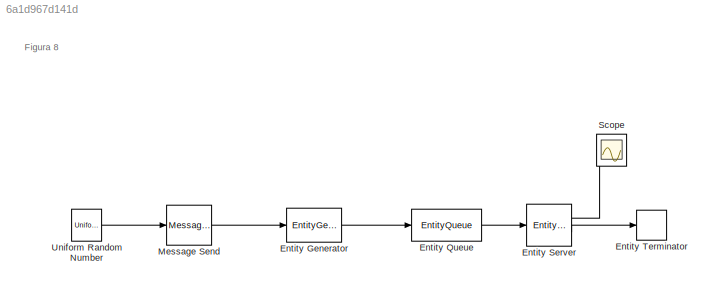
MODEL slx_6a1d967d141d
KIND model
CONFIG AbsTol = auto
CONFIG FixedStep = auto
CONFIG MaxStep = auto
CONFIG MinStep = auto
CONFIG RelTol = 1e-3
CONFIG SampleTimeConstraint = Unconstrained
CONFIG Solver = VariableStepDiscrete
CONFIG SolverMode = Auto
CONFIG SolverName = VariableStepDiscrete
CONFIG StartTime = 0.0
CONFIG StopTime = 2400
BLOCK [EntityGenerator] Entity Generator
  AttributeInitialValue = 1|1
  AttributeName = Attribute|ServiceTime
  EntityType = Structured
  EntityTypeName = Entity
  GenerateAction = persistent init\nif (isempty(init))\n    rng(2347);\n    init = true;\nend\nentity.ServiceTime = 3.5 + rand * 3;
  GenerationMethod = Event-based
  InputPortMap = u0
  InputPortMessageModes = m
  OutputPortMap = o3
  OutputPortMessageModes = m
  Ports = [1, 1]
BLOCK [EntityQueue] Entity Queue
  InputPortMap = u0
  InputPortMessageModes = m
  OutputPortMap = o5
  OutputPortMessageModes = m
  Ports = [1, 1]
BLOCK [EntityServer] Entity Server
  AverageWait = on
  Capacity = 1
  InputPortMap = u2
  InputPortMessageModes = m
  OutputPortMap = o4,o9
  OutputPortMessageModes = n,m
  Ports = [1, 2]
  ServiceTimeSource = Attribute
BLOCK [EntityTerminator] Entity Terminator
  InputPortMap = u0
  InputPortMessageModes = m
  Ports = [1]
BLOCK [MessageSend] Message Send
  InputPortMap = u1
  OutputPortMessageModes = m
  Ports = [1, 1]
BLOCK [Scope] Scope
  Ports = [1]
  ScopeSpecificationString = Simulink.scopes.TimeScopeBlockCfg('CurrentConfiguration', extmgr.ConfigurationSet(extmgr.Configuration('Core','General UI',true),extmgr.Configuration('Core','Source UI',true),extmgr.Configuration('Sources','WiredSimulink',true),extmgr.Configuration('Visuals','Time Domain',true,'SerializedDisplays',{struct('MinYLimReal','4.59837','MaxYLimReal','5.21252','YLabelReal','','MinYLimMag','4.59837','MaxYL...<+1393ch>
BLOCK [UniformRandomNumber] Uniform Random Number
  SampleTime = 0.1
ANNOTATION (root): Figura 8
LINE Entity Generator:1 -> Entity Queue:1
LINE Entity Queue:1 -> Entity Server:1
LINE Entity Server:1 -> Scope:1
LINE Entity Server:2 -> Entity Terminator:1
LINE Message Send:1 -> Entity Generator:1
LINE Uniform Random Number:1 -> Message Send:1
